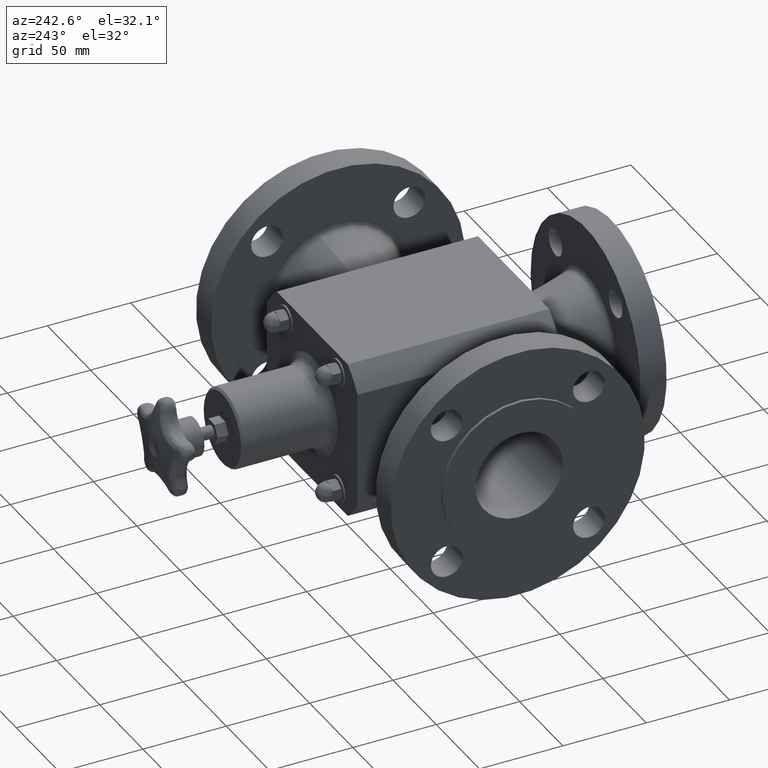
[diagram: clean part render]
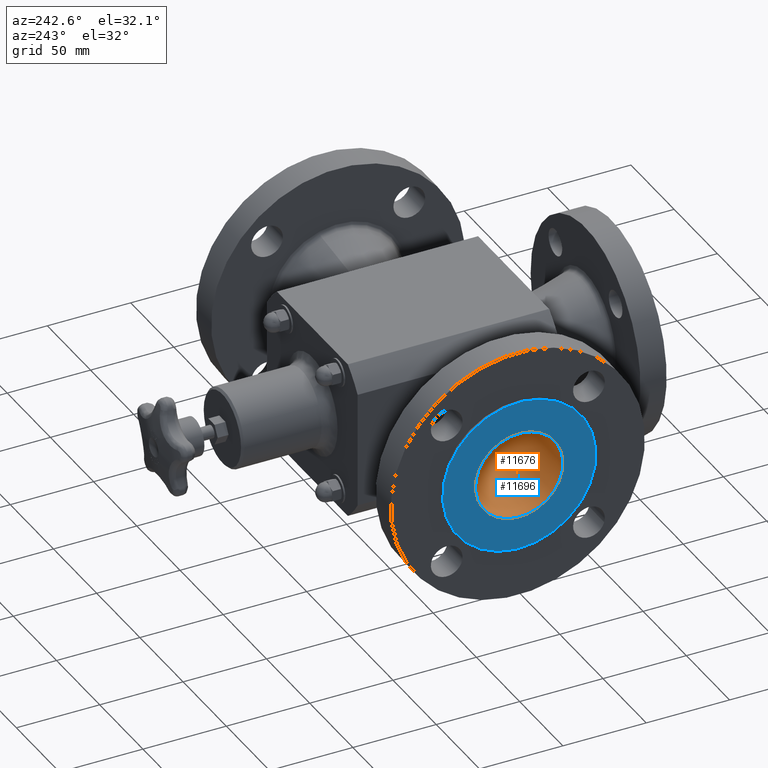
[diagram: same view with the hole feature highlighted: cylindrical wall and planar end face, labeled with their STEP entity ids]
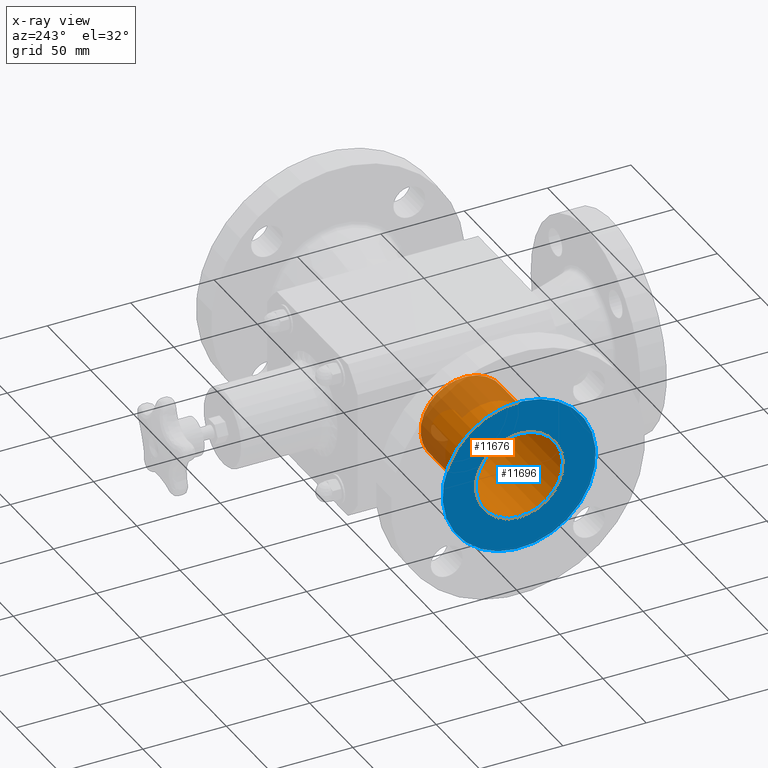
[diagram: x-ray of the same camera — body ghosted, the hole faces saturated]
A machine part, auxiliary view. The highlighted faces form one hole feature of diameter 52.5018 mm: the cylindrical wall (entity #11676, orange) and its adjacent planar end face (entity #11696, blue) — they share a circular edge in the B-rep.
The next image is the same camera in x-ray (body ghosted, the hole faces saturated) — the bore reads through the body.
Wall:
#113=CARTESIAN_POINT('',(-1.997500000000005,2.488971105437212,-0.991694542592713));
#114=VERTEX_POINT('',#113);
#115=CARTESIAN_POINT('',(-1.997500000000005,2.197999999999997,1.291174E-015));
#116=DIRECTION('',(-1.000000000000000,9.995965E-017,9.995965E-017));
#117=DIRECTION('',(1.413643E-016,0.707106781186547,0.707106781186547));
#118=AXIS2_PLACEMENT_3D('',#115,#116,#117);
#119=CIRCLE('',#118,1.033500000000000);
#120=EDGE_CURVE('',#114,#114,#119,.T.);
#11657=CARTESIAN_POINT('',(-3.248750000010005,2.197999999999997,1.610982E-015));
#11658=DIRECTION('',(-1.0,-5.567208E-017,2.555914E-016));
#11659=DIRECTION('',(-2.609265E-016,0.281539531142331,-0.959549629984899));
#11660=AXIS2_PLACEMENT_3D('',#11657,#11658,#11659);
#11661=CYLINDRICAL_SURFACE('',#11660,1.033500000000000);
#11662=ORIENTED_EDGE('',*,*,#120,.F.);
#11663=EDGE_LOOP('',(#11662));
#11664=FACE_OUTER_BOUND('',#11663,.T.);
#11665=CARTESIAN_POINT('',(-4.500000000010306,2.488971105437211,-0.991694542592713));
#11666=VERTEX_POINT('',#11665);
#11667=CARTESIAN_POINT('',(-4.500000000010305,2.197999999999997,1.930791E-015));
#11668=DIRECTION('',(-1.000000000000000,9.995965E-017,9.995965E-017));
#11669=DIRECTION('',(1.413643E-016,0.707106781186547,0.707106781186547));
#11670=AXIS2_PLACEMENT_3D('',#11667,#11668,#11669);
#11671=CIRCLE('',#11670,1.033500000000000);
#11672=EDGE_CURVE('',#11666,#11666,#11671,.T.);
#11673=ORIENTED_EDGE('',*,*,#11672,.T.);
#11674=EDGE_LOOP('',(#11673));
#11675=FACE_BOUND('',#11674,.T.);
#11676=ADVANCED_FACE('',(#11664,#11675),#11661,.F.);
End face:
#11665=CARTESIAN_POINT('',(-4.500000000010306,2.488971105437211,-0.991694542592713));
#11666=VERTEX_POINT('',#11665);
#11667=CARTESIAN_POINT('',(-4.500000000010305,2.197999999999997,1.930791E-015));
#11668=DIRECTION('',(-1.000000000000000,9.995965E-017,9.995965E-017));
#11669=DIRECTION('',(1.413643E-016,0.707106781186547,0.707106781186547));
#11670=AXIS2_PLACEMENT_3D('',#11667,#11668,#11669);
#11671=CIRCLE('',#11670,1.033500000000000);
#11672=EDGE_CURVE('',#11666,#11666,#11671,.T.);
#11677=CARTESIAN_POINT('',(-4.500000000010305,1.467205141643700,0.730794858356299));
#11678=DIRECTION('',(-1.0,0.0,0.0));
#11679=DIRECTION('',(0.0,-0.707106781186548,-0.707106781186548));
#11680=AXIS2_PLACEMENT_3D('',#11677,#11678,#11679);
#11681=PLANE('',#11680);
#11682=CARTESIAN_POINT('',(-4.500000000010305,1.688413448628150,1.736784830280829));
#11683=VERTEX_POINT('',#11682);
#11684=CARTESIAN_POINT('',(-4.500000000010305,2.197999999999997,1.930791E-015));
#11685=DIRECTION('',(-1.000000000000000,9.995965E-017,9.995965E-017));
#11686=DIRECTION('',(1.413643E-016,0.707106781186547,0.707106781186547));
#11687=AXIS2_PLACEMENT_3D('',#11684,#11685,#11686);
#11688=CIRCLE('',#11687,1.810000000010000);
#11689=EDGE_CURVE('',#11683,#11683,#11688,.T.);
#11690=ORIENTED_EDGE('',*,*,#11689,.T.);
#11691=EDGE_LOOP('',(#11690));
#11692=FACE_OUTER_BOUND('',#11691,.T.);
#11693=ORIENTED_EDGE('',*,*,#11672,.F.);
#11694=EDGE_LOOP('',(#11693));
#11695=FACE_BOUND('',#11694,.T.);
#11696=ADVANCED_FACE('',(#11692,#11695),#11681,.T.);